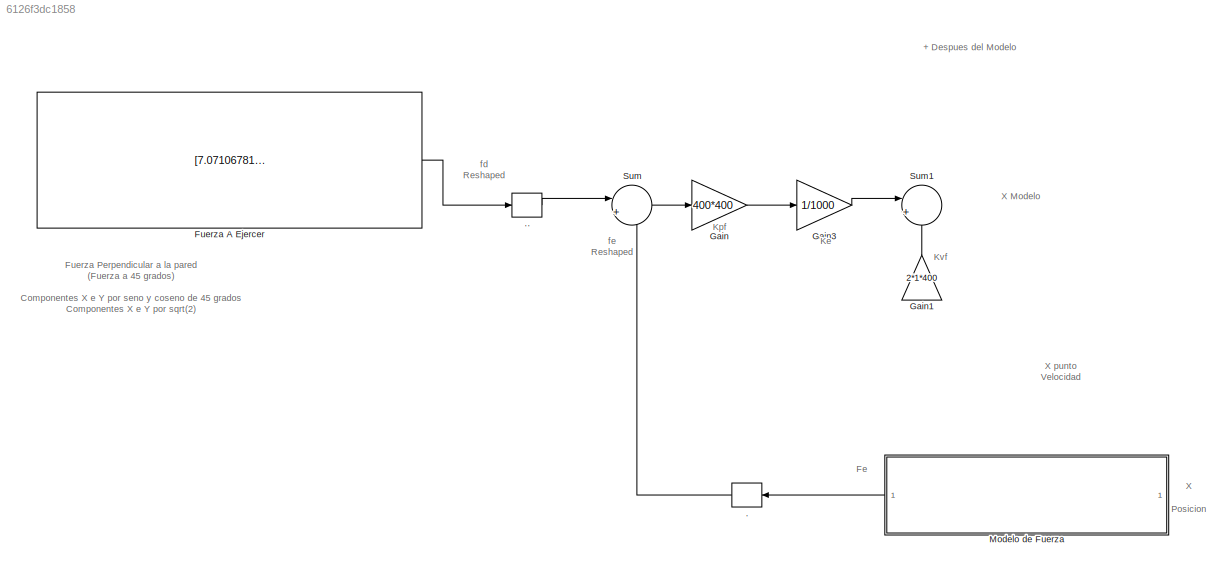
MODEL slx_6126f3dc1858
KIND model
CONFIG AbsTol = auto
CONFIG EnableMultiTasking = off
CONFIG FixedStep = auto
CONFIG MaxStep = auto
CONFIG MinStep = auto
CONFIG RelTol = 1e-3
CONFIG SampleTimeConstraint = Unconstrained
CONFIG SolverName = VariableStepAuto
CONFIG StartTime = 0.0
CONFIG StopTime = 10.0
BLOCK [Reshape] .
  NameLocation = top
  OutputDimensionality = Column vector (2-D)
BLOCK [Reshape] ..
  OutputDimensionality = Column vector (2-D)
BLOCK [Constant] Fuerza A Ejercer
  Value = [7.0710678118654752440084436210485 7.0710678118654752440084436210485]
BLOCK [Gain] Gain
  Gain = 400*400
BLOCK [Gain] Gain1
  Gain = 2*1*400
  NameLocation = right
BLOCK [Gain] Gain3
  Gain = 1/1000
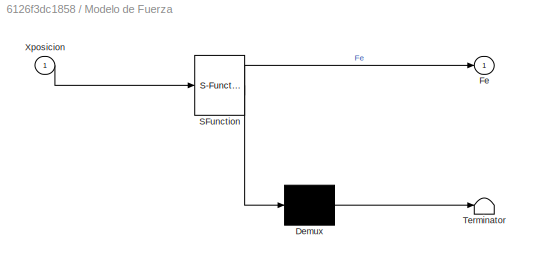
BLOCK [SubSystem] Modelo de Fuerza
  ErrorFcn = Stateflow.Translate.translate
  PermitHierarchicalResolution = ExplicitOnly
  SFBlockType = MATLAB Function
  TreatAsAtomicUnit = on
BLOCK [Demux] Modelo de Fuerza/ Demux 
  Outputs = 1
BLOCK [S-Function] Modelo de Fuerza/ SFunction 
  EnableBusSupport = off
  FunctionName = sf_sfun
  PortCounts = [1 2]
  SFcnIsStateOwnerBlock = off
  SFunctionDeploymentMode = off
  Tag = Stateflow S-Function 4
BLOCK [Terminator] Modelo de Fuerza/ Terminator 
BLOCK [Outport] Modelo de Fuerza/Fe
BLOCK [Inport] Modelo de Fuerza/Xposicion
BLOCK [Sum] Sum
  Inputs = |+-
BLOCK [Sum] Sum1
  Inputs = |+-
ANNOTATION (root): + Despues del Modelo
ANNOTATION (root): Fe
ANNOTATION (root): Fuerza Perpendicular a la pared (Fuerza a 45 grados) Componentes X e Y por seno y coseno de 45 grados Componentes X e Y por sqrt(2) Fuerza dato = 10N Fuerza en ejes = 10.sen o cos (45)
ANNOTATION (root): Ke
ANNOTATION (root): Kpf
ANNOTATION (root): Kvf
ANNOTATION (root): X Posicion
ANNOTATION (root): X Modelo
ANNOTATION (root): X punto Velocidad
ANNOTATION (root): fd Reshaped
ANNOTATION (root): fe Reshaped
LINE ..:1 -> Sum:1
LINE .:1 -> Sum:2
LINE Fuerza A Ejercer:1 -> ..:1
LINE Gain1:1 -> Sum1:2
LINE Gain3:1 -> Sum1:1
LINE Gain:1 -> Gain3:1
LINE Modelo de Fuerza:1 -> .:1
LINE Sum:1 -> Gain:1
CHART Modelo de Fuerza states=1 transitions=1
  STATE_LABEL 'eML_blk_kernel()'
  STATE_LABEL 'SCRIPT:\n%Input: Vector de coordenadas bidimensionales Xposicion como entrada\n%Output: Vector de fuerzas bidimensionales Fe \n\n%Description: Evalar la posición del punto representado por las coordenadas \n%Xposicion con respecto a la pared \n%En base a ello, calcula la fuerza correspondiente.\n\nfunction Fe = modeloFuerzaCalc(Xposicion)\n\nkEnv = 1000; %N/mm\nejeY = Xposicion(2);\nejeX = Xposicion(1);\n\n%Par...<+714ch>'
CHART  states=0 transitions=0
